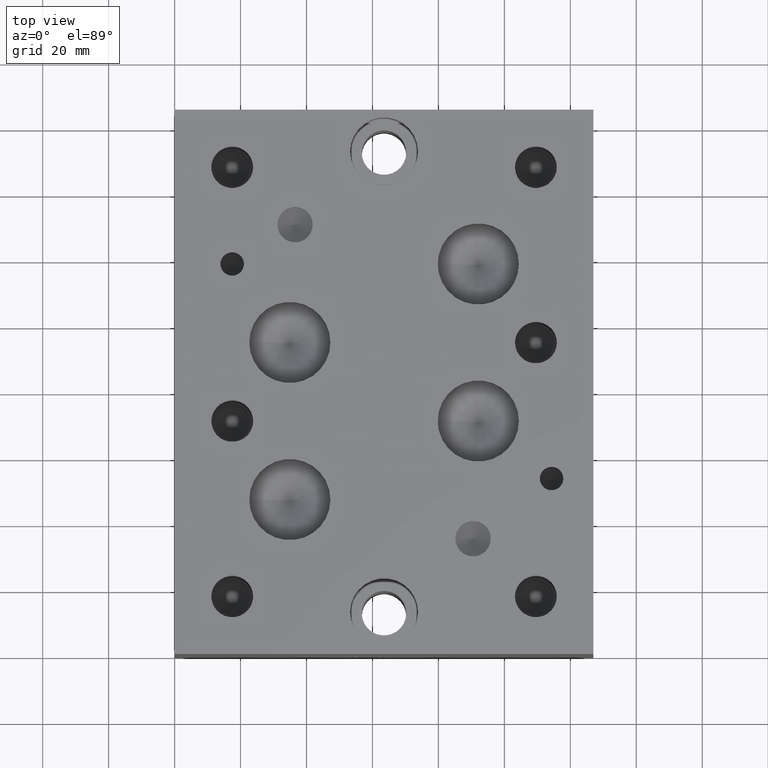
[diagram: clean part render]
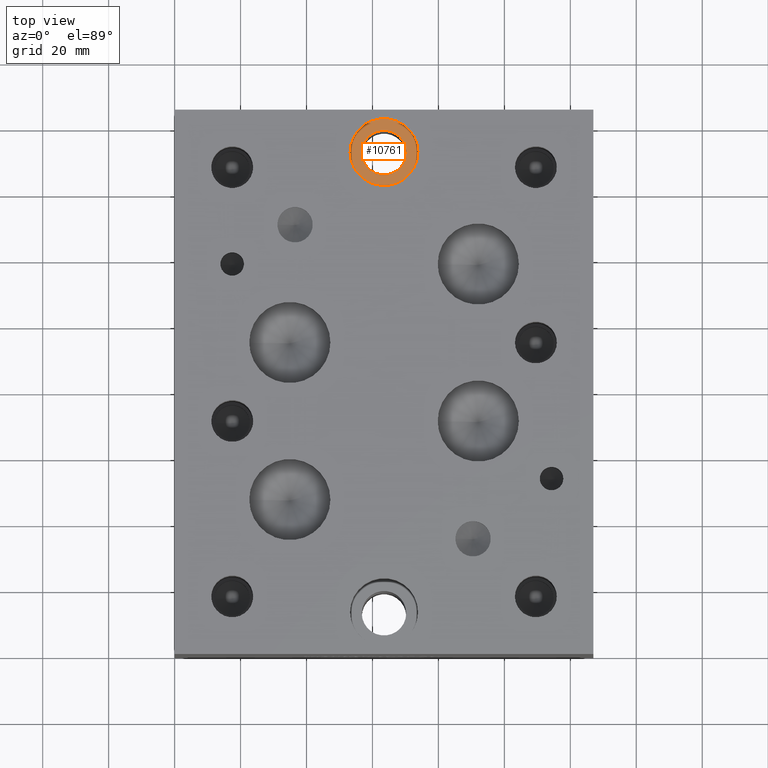
[diagram: same view with one face highlighted and labeled with its STEP entity id]
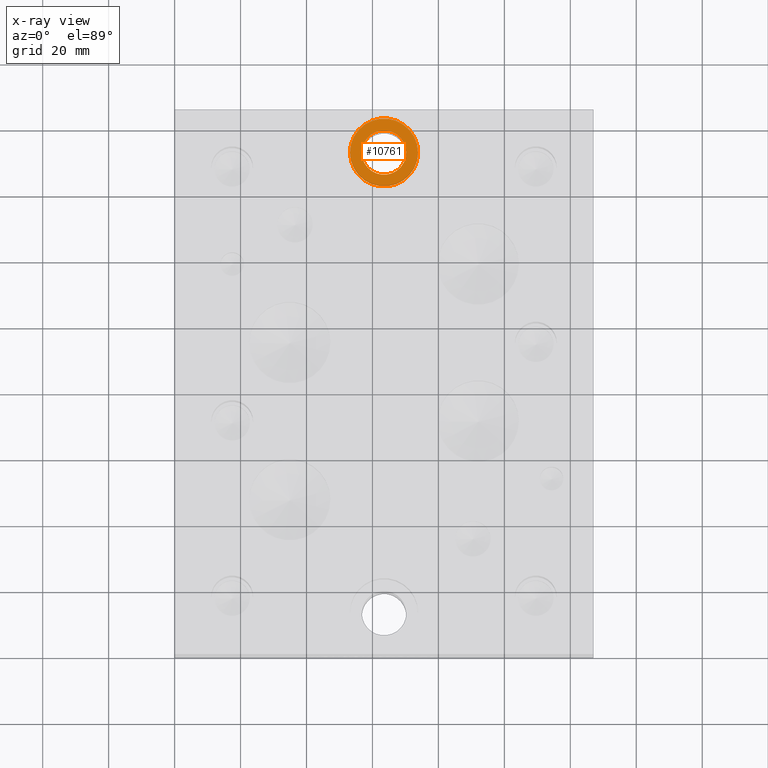
[diagram: x-ray of the same camera — body ghosted, the highlighted face saturated]
A machine part, top view. The second image highlights one B-rep face of the part: STEP entity #10761.
The next image is the same camera in x-ray: the body ghosted, the highlighted face saturated — about 0% of this face is hidden behind the body in this view.
In plain terms, the highlighted planar face has unit normal (0, 0, 1).
Its self-contained STEP definition (entity closure, byte-faithful):
#222=CIRCLE('',#11281,10.3124);
#223=CIRCLE('',#11282,10.3124);
#224=CIRCLE('',#11283,6.7437);
#360=FACE_BOUND('',#1981,.T.);
#1373=FACE_OUTER_BOUND('',#1980,.T.);
#1980=EDGE_LOOP('',(#9279,#9280));
#1981=EDGE_LOOP('',(#9281));
#4938=VERTEX_POINT('',#18488);
#4939=VERTEX_POINT('',#18489);
#4940=VERTEX_POINT('',#18492);
#6414=EDGE_CURVE('',#4938,#4939,#222,.T.);
#6415=EDGE_CURVE('',#4939,#4938,#223,.T.);
#6416=EDGE_CURVE('',#4940,#4940,#224,.T.);
#9279=ORIENTED_EDGE('',*,*,#6414,.T.);
#9280=ORIENTED_EDGE('',*,*,#6415,.T.);
#9281=ORIENTED_EDGE('',*,*,#6416,.F.);
#9824=PLANE('',#11280);
#10761=ADVANCED_FACE('',(#1373,#360),#9824,.T.);
#11280=AXIS2_PLACEMENT_3D('',#18487,#13266,#13267);
#11281=AXIS2_PLACEMENT_3D('',#18490,#13268,#13269);
#11282=AXIS2_PLACEMENT_3D('',#18491,#13270,#13271);
#11283=AXIS2_PLACEMENT_3D('',#18493,#13272,#13273);
#13266=DIRECTION('center_axis',(0.,0.,1.));
#13267=DIRECTION('ref_axis',(1.,0.,0.));
#13268=DIRECTION('center_axis',(0.,0.,1.));
#13269=DIRECTION('ref_axis',(1.,0.,0.));
#13270=DIRECTION('center_axis',(0.,0.,1.));
#13271=DIRECTION('ref_axis',(1.,0.,0.));
#13272=DIRECTION('center_axis',(0.,0.,1.));
#13273=DIRECTION('ref_axis',(1.,0.,0.));
#18487=CARTESIAN_POINT('Origin',(63.5,152.4,57.15));
#18488=CARTESIAN_POINT('',(73.8124,152.4,57.15));
#18489=CARTESIAN_POINT('',(53.1876,152.4,57.15));
#18490=CARTESIAN_POINT('Origin',(63.5,152.4,57.15));
#18491=CARTESIAN_POINT('Origin',(63.5,152.4,57.15));
#18492=CARTESIAN_POINT('',(56.7563,152.4,57.15));
#18493=CARTESIAN_POINT('Origin',(63.5,152.4,57.15));